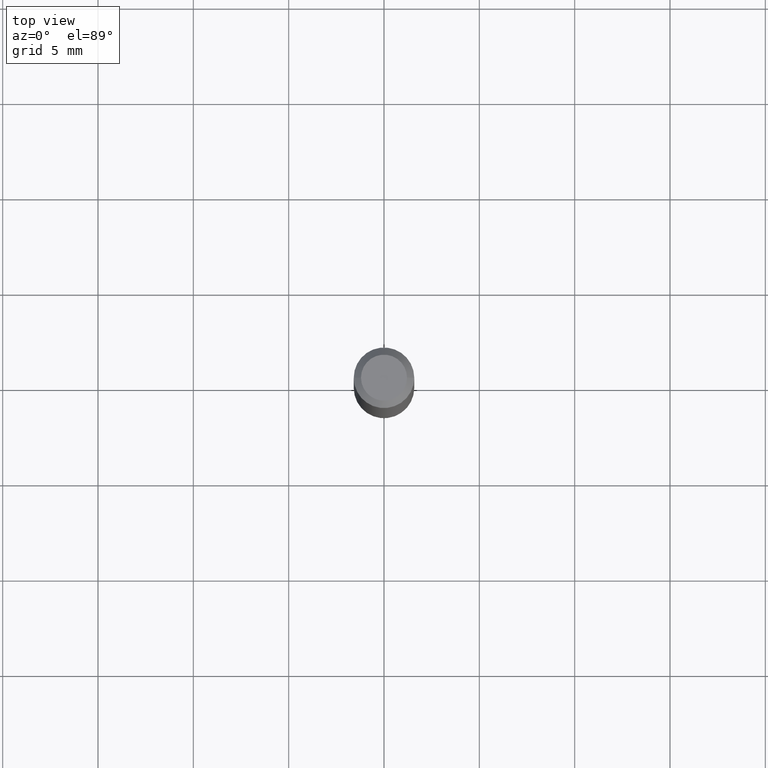
[diagram: clean part render]
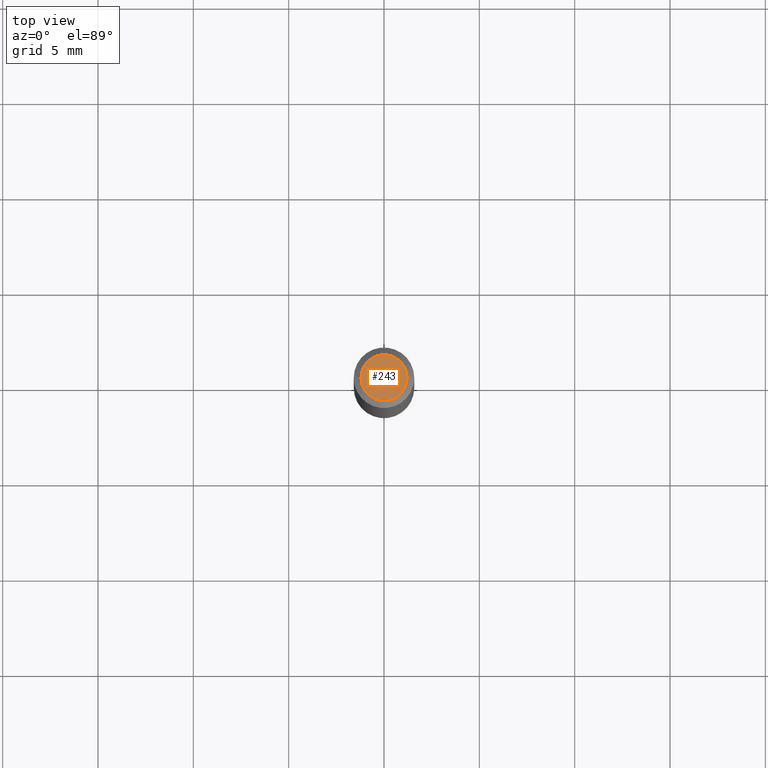
[diagram: same view with one face highlighted and labeled with its STEP entity id]
A machine part, top view. The second image highlights one B-rep face of the part: STEP entity #243.
In plain terms, the highlighted planar face has unit normal (0, -0, -1).
Its self-contained STEP definition (entity closure, byte-faithful):
#1 = AXIS2_PLACEMENT_3D ( 'NONE', #406, #361, #160 ) ;
#19 = CIRCLE ( 'NONE', #379, 0.04749999999999999362 ) ;
#26 = EDGE_CURVE ( 'NONE', #181, #407, #19, .T. ) ;
#40 = CARTESIAN_POINT ( 'NONE',  ( -3.223020679335594837E-45, 4.601619341103081537E-31, 1.317956160873471783E-16 ) ) ;
#73 = AXIS2_PLACEMENT_3D ( 'NONE', #40, #78, #299 ) ;
#78 = DIRECTION ( 'NONE',  ( -2.445468806185136597E-29, 3.491481338843145583E-15, 1.000000000000000000 ) ) ;
#84 = EDGE_LOOP ( 'NONE', ( #301, #265 ) ) ;
#122 = PLANE ( 'NONE',  #1 ) ;
#130 = EDGE_CURVE ( 'NONE', #407, #181, #455, .T. ) ;
#132 = DIRECTION ( 'NONE',  ( -2.445468806185136597E-29, 3.491481338843145583E-15, 1.000000000000000000 ) ) ;
#160 = DIRECTION ( 'NONE',  ( -1.000000000000000000, 6.982962677686265922E-15, -4.876176775795935793E-29 ) ) ;
#181 = VERTEX_POINT ( 'NONE', #338 ) ;
#199 = CARTESIAN_POINT ( 'NONE',  ( 0.04749999999999999362, -4.035134999187576158E-16, 1.317956160873497667E-16 ) ) ;
#243 = ADVANCED_FACE ( 'NONE', ( #295 ), #122, .F. ) ;
#265 = ORIENTED_EDGE ( 'NONE', *, *, #130, .T. ) ;
#295 = FACE_OUTER_BOUND ( 'NONE', #84, .T. ) ;
#299 = DIRECTION ( 'NONE',  ( 1.000000000000000000, -6.982962677686267499E-15, 4.884662768193073002E-29 ) ) ;
#301 = ORIENTED_EDGE ( 'NONE', *, *, #26, .T. ) ;
#338 = CARTESIAN_POINT ( 'NONE',  ( -0.04749999999999999362, 3.578768372314212971E-16, 1.317956160873447624E-16 ) ) ;
#352 = DIRECTION ( 'NONE',  ( 1.000000000000000000, -6.982962677686267499E-15, 4.884662768193073002E-29 ) ) ;
#361 = DIRECTION ( 'NONE',  ( 2.438088387897960049E-29, -3.491481338843145188E-15, -1.000000000000000000 ) ) ;
#379 = AXIS2_PLACEMENT_3D ( 'NONE', #386, #132, #352 ) ;
#386 = CARTESIAN_POINT ( 'NONE',  ( -3.223020679335594837E-45, 4.601619341103081537E-31, 1.317956160873471783E-16 ) ) ;
#406 = CARTESIAN_POINT ( 'NONE',  ( 3.316907271900976096E-16, 0.04749999999999999362, -9.994755555137580731E-17 ) ) ;
#407 = VERTEX_POINT ( 'NONE', #199 ) ;
#455 = CIRCLE ( 'NONE', #73, 0.04749999999999999362 ) ;